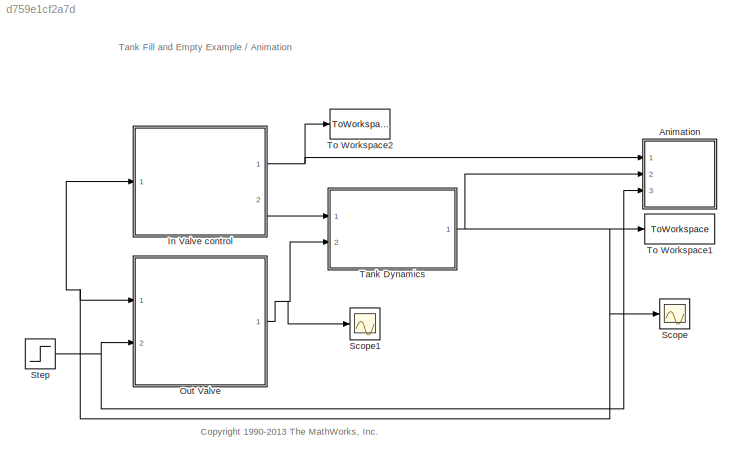
MODEL slx_d759e1cf2a7d
KIND model
CONFIG AbsTol = 1e-6
CONFIG EnableMultiTasking = off
CONFIG FixedStep = .5
CONFIG MaxStep = auto
CONFIG MinStep = auto
CONFIG PreLoadFcn = sldemo_tankgui
CONFIG RelTol = 1e-3
CONFIG SampleTimeConstraint = Unconstrained
CONFIG Solver = ode1
CONFIG SolverName = ode1
CONFIG StartFcn = sldemo_tankgui start
CONFIG StartTime = 0.0
CONFIG StopFcn = sldemo_tankgui stop
CONFIG StopTime = 170
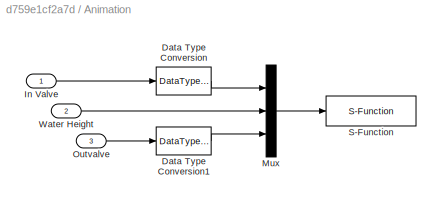
BLOCK [SubSystem] Animation
  Ports = [3]
  RequestExecContextInheritance = off
BLOCK [DataTypeConversion] Animation/Data Type Conversion
  OutDataTypeStr = double
BLOCK [DataTypeConversion] Animation/Data Type Conversion1
  OutDataTypeStr = double
BLOCK [Inport] Animation/In Valve
  IconDisplay = Port number
BLOCK [Mux] Animation/Mux
  DisplayOption = bar
  Inputs = 3
  Ports = [3, 1]
BLOCK [Inport] Animation/Outvalve
  IconDisplay = Port number
  Port = 3
BLOCK [S-Function] Animation/S-Function
  EnableBusSupport = off
  FunctionName = sldemo_tanksfun
  Parameters = inflow,outflow,lolim,hilim,area
  Ports = [1]
  SFcnIsStateOwnerBlock = off
  SFunctionDeploymentMode = off
BLOCK [Inport] Animation/Water Height
  IconDisplay = Port number
  Port = 2
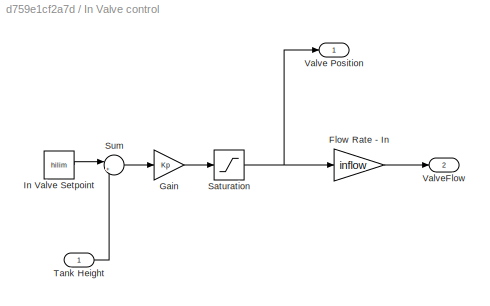
BLOCK [SubSystem] In Valve control
  Ports = [1, 2]
  RequestExecContextInheritance = off
BLOCK [Gain] In Valve control/Flow Rate - In
  Gain = inflow
  OutDataTypeStr = Inherit: Inherit via back propagation
BLOCK [Gain] In Valve control/Gain
  Gain = Kp
  OutDataTypeStr = Inherit: Inherit via internal rule
  ParamDataTypeStr = Inherit: Inherit via internal rule
  SaturateOnIntegerOverflow = off
BLOCK [Constant] In Valve control/In Valve Setpoint
  Value = hilim
BLOCK [Saturate] In Valve control/Saturation
  InputPortMap = u0
  LowerLimit = 0
  Ports = [1, 1]
  UpperLimit = 1
BLOCK [Sum] In Valve control/Sum
  IconShape = round
  InputSameDT = off
  Inputs = |+-
  OutDataTypeStr = Inherit: Inherit via internal rule
  Ports = [2, 1]
  SaturateOnIntegerOverflow = off
BLOCK [Inport] In Valve control/Tank Height
  IconDisplay = Port number
BLOCK [Outport] In Valve control/Valve Position
  IconDisplay = Port number
  InitialOutput = 0
BLOCK [Outport] In Valve control/ValveFlow
  IconDisplay = Port number
  InitialOutput = 0
  Port = 2
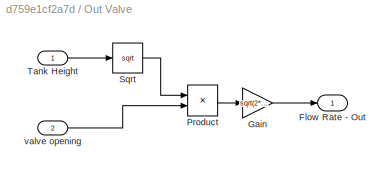
BLOCK [SubSystem] Out Valve
  Ports = [2, 1]
  RequestExecContextInheritance = off
BLOCK [Outport] Out Valve/Flow Rate - Out
  IconDisplay = Port number
  InitialOutput = 0
BLOCK [Gain] Out Valve/Gain
  Gain = sqrt(2*9.8)
  OutDataTypeStr = Inherit: Inherit via internal rule
  ParamDataTypeStr = Inherit: Inherit via internal rule
  SaturateOnIntegerOverflow = off
BLOCK [Product] Out Valve/Product
  InputSameDT = off
  OutDataTypeStr = Inherit: Inherit via internal rule
  Ports = [2, 1]
  RndMeth = Floor
  SaturateOnIntegerOverflow = off
BLOCK [Sqrt] Out Valve/Sqrt
BLOCK [Inport] Out Valve/Tank Height
  IconDisplay = Port number
BLOCK [Inport] Out Valve/valve opening
  IconDisplay = Port number
  Port = 2
BLOCK [Scope] Scope
  Floating = off
  NumInputPorts = 1
  Ports = [1]
  ScopeSpecificationString = Simulink.scopes.TimeScopeBlockCfg('CurrentConfiguration', extmgr.ConfigurationSet(extmgr.Configuration('Core','General UI',true),extmgr.Configuration('Core','Source UI',true),extmgr.Configuration('Sources','WiredSimulink',true,'DataLoggingLimitDataPoints',true,'DataLoggingSaveFormat','Array','DataLoggingDecimation','1','DataLoggingDecimateData',true),extmgr.Configuration('Visuals','Time Domain',tr...<+1706ch>
BLOCK [Scope] Scope1
  Floating = off
  NumInputPorts = 1
  Ports = [1]
  ScopeSpecificationString = Simulink.scopes.TimeScopeBlockCfg('CurrentConfiguration', extmgr.ConfigurationSet(extmgr.Configuration('Core','General UI',true),extmgr.Configuration('Core','Source UI',true),extmgr.Configuration('Sources','WiredSimulink',true,'DataLoggingVariableName','ScopeData1'),extmgr.Configuration('Visuals','Time Domain',true,'SerializedDisplays',{struct('MinYLimReal','-1.36887','MaxYLimReal','12.31979','YLa...<+1427ch>
BLOCK [Step] Step
  SampleTime = 0
  Time = 3
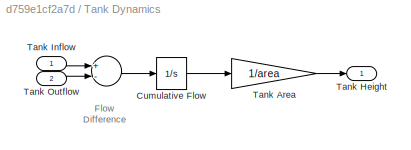
BLOCK [SubSystem] Tank Dynamics
  Ports = [2, 1]
  RequestExecContextInheritance = off
BLOCK [Sum] Tank Dynamics/ 
  Inputs = +-
  Ports = [2, 1]
BLOCK [Integrator] Tank Dynamics/Cumulative Flow
  InitialCondition = (hilim+lolim)/2*area
  Ports = [1, 1]
BLOCK [Gain] Tank Dynamics/Tank Area
  Gain = 1/area
BLOCK [Outport] Tank Dynamics/Tank Height
  IconDisplay = Port number
  InitialOutput = 0
BLOCK [Inport] Tank Dynamics/Tank Inflow
  IconDisplay = Port number
BLOCK [Inport] Tank Dynamics/Tank Outflow
  IconDisplay = Port number
  Port = 2
BLOCK [ToWorkspace] To Workspace1
  MaxDataPoints = inf
  Ports = [1]
  SampleTime = -1
  VariableName = tankheight
BLOCK [ToWorkspace] To Workspace2
  MaxDataPoints = inf
  Ports = [1]
  SampleTime = -1
  VariableName = invalve
ANNOTATION (root): <copyright redacted>
ANNOTATION (root): Tank Fill and Empty Example / Animation
ANNOTATION Tank Dynamics: Flow Difference
LINE Animation/Data Type Conversion1:1 -> Animation/Mux:3
LINE Animation/Data Type Conversion:1 -> Animation/Mux:1
LINE Animation/In Valve:1 -> Animation/Data Type Conversion:1
LINE Animation/Mux:1 -> Animation/S-Function:1
LINE Animation/Outvalve:1 -> Animation/Data Type Conversion1:1
LINE Animation/Water Height:1 -> Animation/Mux:2
LINE In Valve control/Flow Rate - In:1 -> In Valve control/ValveFlow:1
LINE In Valve control/Gain:1 -> In Valve control/Saturation:1
LINE In Valve control/In Valve Setpoint:1 -> In Valve control/Sum:1
NET In Valve control/Saturation:1 -> In Valve control/Flow Rate - In:1, In Valve control/Valve Position:1
LINE In Valve control/Sum:1 -> In Valve control/Gain:1
LINE In Valve control/Tank Height:1 -> In Valve control/Sum:2
NET In Valve control:1 -> Animation:1, To Workspace2:1
LINE In Valve control:2 -> Tank Dynamics:1
LINE Out Valve/Gain:1 -> Out Valve/Flow Rate - Out:1
LINE Out Valve/Product:1 -> Out Valve/Gain:1
LINE Out Valve/Sqrt:1 -> Out Valve/Product:1
LINE Out Valve/Tank Height:1 -> Out Valve/Sqrt:1
LINE Out Valve/valve opening:1 -> Out Valve/Product:2
NET Out Valve:1 -> Scope1:1, Tank Dynamics:2
NET Step:1 -> Animation:3, Out Valve:2
LINE Tank Dynamics/ :1 -> Tank Dynamics/Cumulative Flow:1
LINE Tank Dynamics/Cumulative Flow:1 -> Tank Dynamics/Tank Area:1
LINE Tank Dynamics/Tank Area:1 -> Tank Dynamics/Tank Height:1
LINE Tank Dynamics/Tank Inflow:1 -> Tank Dynamics/ :1
LINE Tank Dynamics/Tank Outflow:1 -> Tank Dynamics/ :2
NET Tank Dynamics:1 -> Animation:2, In Valve control:1, Out Valve:1, Scope:1, To Workspace1:1
note: NET lines group one-source signal fan-out (src -> all destinations, sorted); 1:1 wires keep LINE
